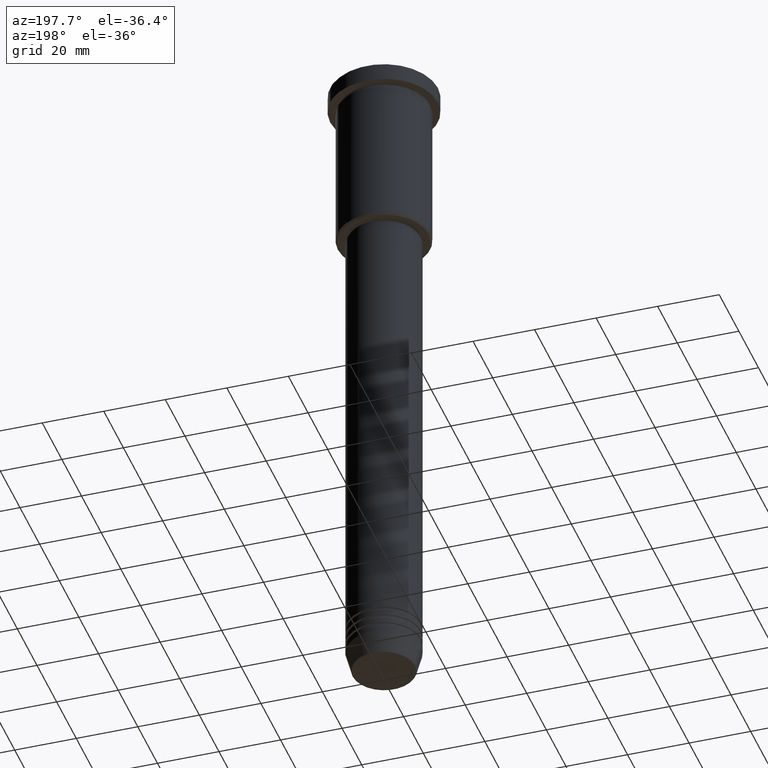
[diagram: clean part render]
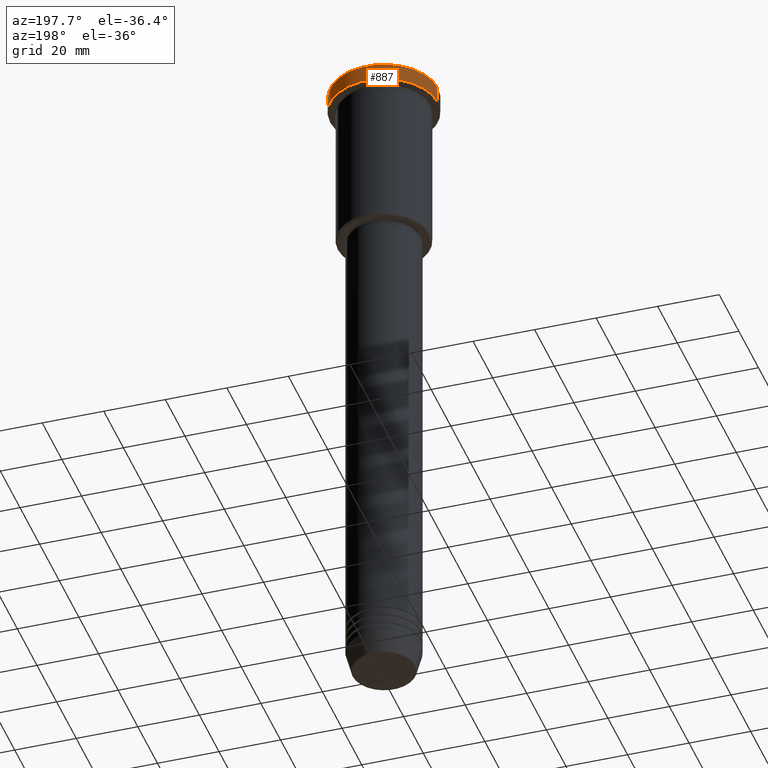
[diagram: same view with one face highlighted and labeled with its STEP entity id]
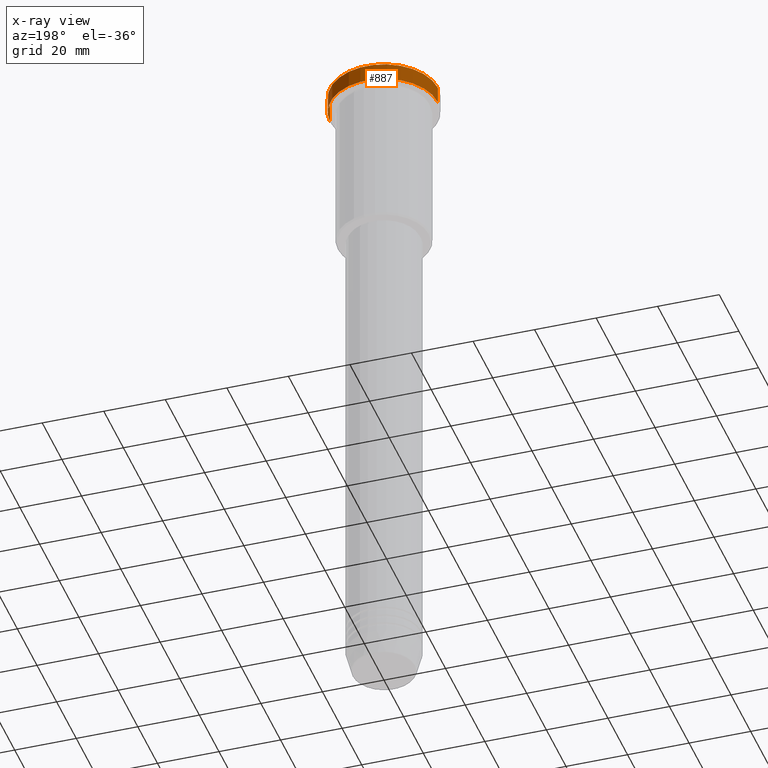
[diagram: x-ray of the same camera — body ghosted, the highlighted face saturated]
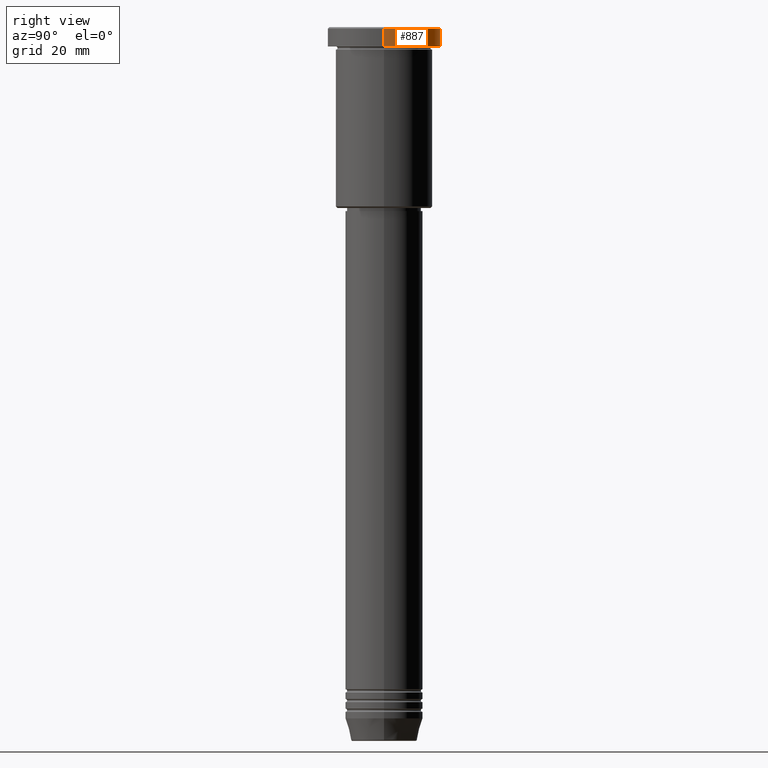
[diagram: same view with one face highlighted and labeled with its STEP entity id]
A machine part, auxiliary view. The second image highlights one B-rep face of the part: STEP entity #887.
The next image is the same camera in x-ray: the body ghosted, the highlighted face saturated — about 0% of this face is hidden behind the body in this view.
A second angle (right view) of the same face is appended — the face is thin or edge-on in the first view.
In plain terms, the highlighted cylindrical surface (partial cylindrical patch) has radius 17.5 mm, axis along (-0, -0, 1).
Its self-contained STEP definition (entity closure, byte-faithful):
#26 = EDGE_CURVE ( 'NONE', #222, #880, #505, .T. ) ;
#42 = ORIENTED_EDGE ( 'NONE', *, *, #1149, .T. ) ;
#64 = DIRECTION ( 'NONE',  ( 1.000000000000000000, 0.000000000000000000, 0.000000000000000000 ) ) ;
#77 = CARTESIAN_POINT ( 'NONE',  ( 17.50000000000000000, 0.000000000000000000, -5.999999999999995559 ) ) ;
#87 = FACE_OUTER_BOUND ( 'NONE', #206, .T. ) ;
#95 = CARTESIAN_POINT ( 'NONE',  ( -17.50000000000000000, 2.143131898507868248E-15, 0.000000000000000000 ) ) ;
#158 = CARTESIAN_POINT ( 'NONE',  ( 0.000000000000000000, 0.000000000000000000, 0.000000000000000000 ) ) ;
#163 = CARTESIAN_POINT ( 'NONE',  ( 17.50000000000000000, 0.000000000000000000, 0.000000000000000000 ) ) ;
#206 = EDGE_LOOP ( 'NONE', ( #432, #42, #1116, #1139 ) ) ;
#222 = VERTEX_POINT ( 'NONE', #811 ) ;
#229 = CARTESIAN_POINT ( 'NONE',  ( -17.50000000000000000, 2.143131898507868248E-15, -5.999999999999995559 ) ) ;
#266 = LINE ( 'NONE', #163, #693 ) ;
#291 = AXIS2_PLACEMENT_3D ( 'NONE', #873, #894, #64 ) ;
#330 = DIRECTION ( 'NONE',  ( 1.000000000000000000, 0.000000000000000000, 0.000000000000000000 ) ) ;
#380 = LINE ( 'NONE', #95, #846 ) ;
#432 = ORIENTED_EDGE ( 'NONE', *, *, #995, .T. ) ;
#454 = DIRECTION ( 'NONE',  ( -0.000000000000000000, -0.000000000000000000, 1.000000000000000000 ) ) ;
#481 = VERTEX_POINT ( 'NONE', #77 ) ;
#505 = CIRCLE ( 'NONE', #580, 17.50000000000000000 ) ;
#530 = CARTESIAN_POINT ( 'NONE',  ( 17.50000000000000000, 0.000000000000000000, -0.5000000000000280886 ) ) ;
#535 = DIRECTION ( 'NONE',  ( -0.000000000000000000, -0.000000000000000000, 1.000000000000000000 ) ) ;
#580 = AXIS2_PLACEMENT_3D ( 'NONE', #598, #1067, #330 ) ;
#598 = CARTESIAN_POINT ( 'NONE',  ( 0.000000000000000000, 0.000000000000000000, -0.5000000000000280886 ) ) ;
#627 = DIRECTION ( 'NONE',  ( -0.000000000000000000, -0.000000000000000000, 1.000000000000000000 ) ) ;
#693 = VECTOR ( 'NONE', #535, 1000.000000000000000 ) ;
#704 = DIRECTION ( 'NONE',  ( 1.000000000000000000, 0.000000000000000000, 0.000000000000000000 ) ) ;
#791 = CYLINDRICAL_SURFACE ( 'NONE', #1160, 17.50000000000000000 ) ;
#804 = CIRCLE ( 'NONE', #291, 17.50000000000000000 ) ;
#811 = CARTESIAN_POINT ( 'NONE',  ( -17.50000000000000000, 2.143131898507868248E-15, -0.5000000000000280886 ) ) ;
#835 = VERTEX_POINT ( 'NONE', #229 ) ;
#846 = VECTOR ( 'NONE', #454, 1000.000000000000000 ) ;
#873 = CARTESIAN_POINT ( 'NONE',  ( 0.000000000000000000, 0.000000000000000000, -5.999999999999995559 ) ) ;
#880 = VERTEX_POINT ( 'NONE', #530 ) ;
#887 = ADVANCED_FACE ( 'NONE', ( #87 ), #791, .T. ) ;
#894 = DIRECTION ( 'NONE',  ( -0.000000000000000000, -0.000000000000000000, 1.000000000000000000 ) ) ;
#904 = EDGE_CURVE ( 'NONE', #481, #880, #266, .T. ) ;
#995 = EDGE_CURVE ( 'NONE', #481, #835, #804, .T. ) ;
#1067 = DIRECTION ( 'NONE',  ( 0.000000000000000000, 0.000000000000000000, -1.000000000000000000 ) ) ;
#1116 = ORIENTED_EDGE ( 'NONE', *, *, #26, .T. ) ;
#1139 = ORIENTED_EDGE ( 'NONE', *, *, #904, .F. ) ;
#1149 = EDGE_CURVE ( 'NONE', #835, #222, #380, .T. ) ;
#1160 = AXIS2_PLACEMENT_3D ( 'NONE', #158, #627, #704 ) ;